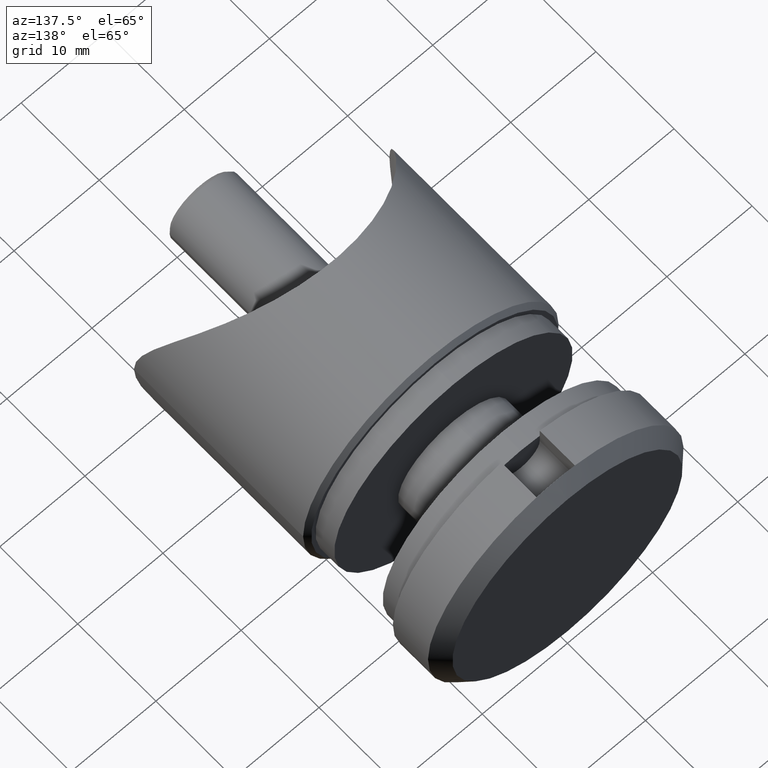
[diagram: clean part render]
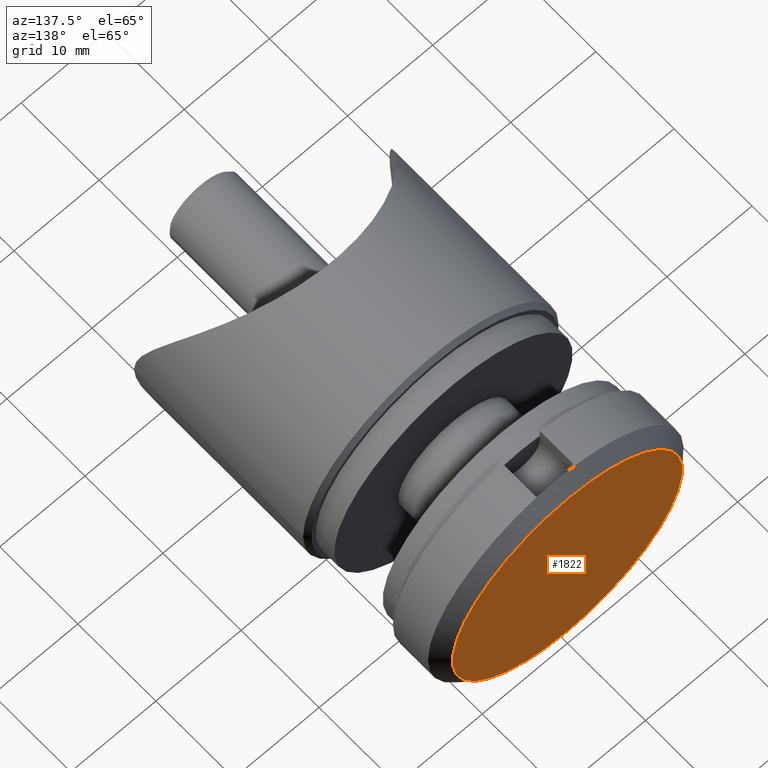
[diagram: same view with one face highlighted and labeled with its STEP entity id]
A machine part, auxiliary view. The second image highlights one B-rep face of the part: STEP entity #1822.
In plain terms, the highlighted planar face has unit normal (0, 1, 0).
Its self-contained STEP definition (entity closure, byte-faithful):
#66 = CARTESIAN_POINT ( 'NONE',  ( 0.000000000000000000, 11.00000000000000000, 0.000000000000000000 ) ) ;
#1156 = DIRECTION ( 'NONE',  ( 0.000000000000000000, 1.000000000000000000, 0.000000000000000000 ) ) ;
#1822 = ADVANCED_FACE ( 'NONE', ( #2259 ), #2506, .T. ) ;
#2259 = FACE_OUTER_BOUND ( 'NONE', #3669, .T. ) ;
#2506 = PLANE ( 'NONE',  #11170 ) ;
#3212 = CIRCLE ( 'NONE', #12001, 13.50000000000000000 ) ;
#3526 = EDGE_CURVE ( 'NONE', #9644, #12817, #6885, .T. ) ;
#3574 = DIRECTION ( 'NONE',  ( 0.000000000000000000, -0.000000000000000000, 1.000000000000000000 ) ) ;
#3669 = EDGE_LOOP ( 'NONE', ( #13746, #8617 ) ) ;
#3932 = EDGE_CURVE ( 'NONE', #12817, #9644, #3212, .T. ) ;
#4679 = DIRECTION ( 'NONE',  ( -0.000000000000000000, -1.000000000000000000, -0.000000000000000000 ) ) ;
#6885 = CIRCLE ( 'NONE', #8405, 13.50000000000000000 ) ;
#7954 = DIRECTION ( 'NONE',  ( 0.000000000000000000, 0.000000000000000000, -1.000000000000000000 ) ) ;
#8068 = DIRECTION ( 'NONE',  ( 0.000000000000000000, 0.000000000000000000, -1.000000000000000000 ) ) ;
#8405 = AXIS2_PLACEMENT_3D ( 'NONE', #9187, #4679, #8068 ) ;
#8535 = CARTESIAN_POINT ( 'NONE',  ( 1.745121688784978228E-15, 11.00000000000000000, 13.50000000000000000 ) ) ;
#8617 = ORIENTED_EDGE ( 'NONE', *, *, #3932, .F. ) ;
#9187 = CARTESIAN_POINT ( 'NONE',  ( 0.000000000000000000, 11.00000000000000000, 0.000000000000000000 ) ) ;
#9644 = VERTEX_POINT ( 'NONE', #12323 ) ;
#11170 = AXIS2_PLACEMENT_3D ( 'NONE', #66, #1156, #3574 ) ;
#11425 = CARTESIAN_POINT ( 'NONE',  ( 0.000000000000000000, 11.00000000000000000, 0.000000000000000000 ) ) ;
#12001 = AXIS2_PLACEMENT_3D ( 'NONE', #11425, #14979, #7954 ) ;
#12323 = CARTESIAN_POINT ( 'NONE',  ( 0.000000000000000000, 11.00000000000000000, -13.50000000000000000 ) ) ;
#12817 = VERTEX_POINT ( 'NONE', #8535 ) ;
#13746 = ORIENTED_EDGE ( 'NONE', *, *, #3526, .F. ) ;
#14979 = DIRECTION ( 'NONE',  ( -0.000000000000000000, -1.000000000000000000, -0.000000000000000000 ) ) ;